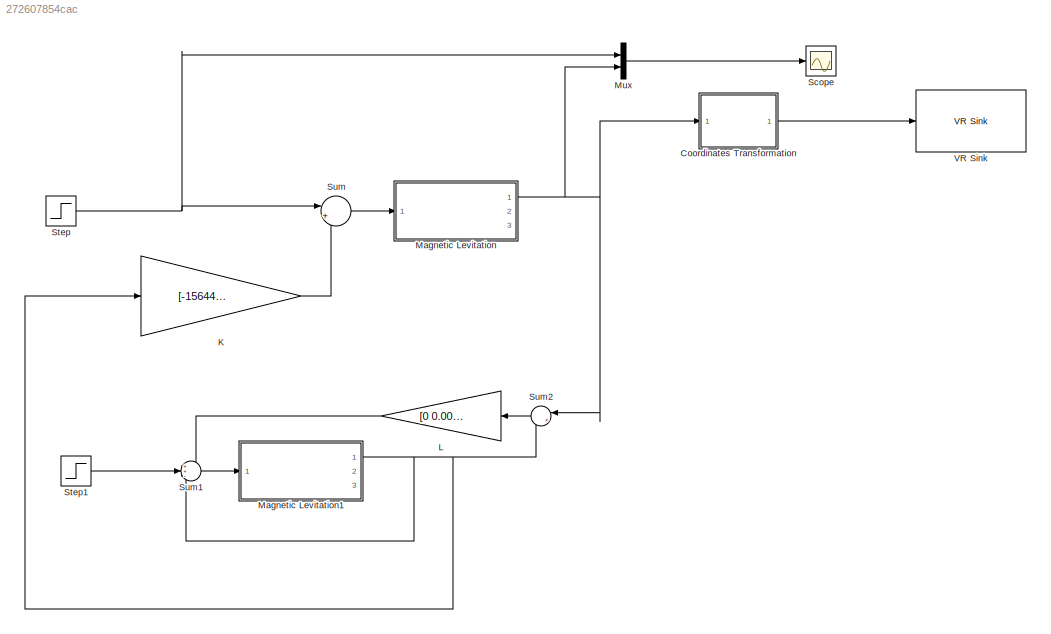
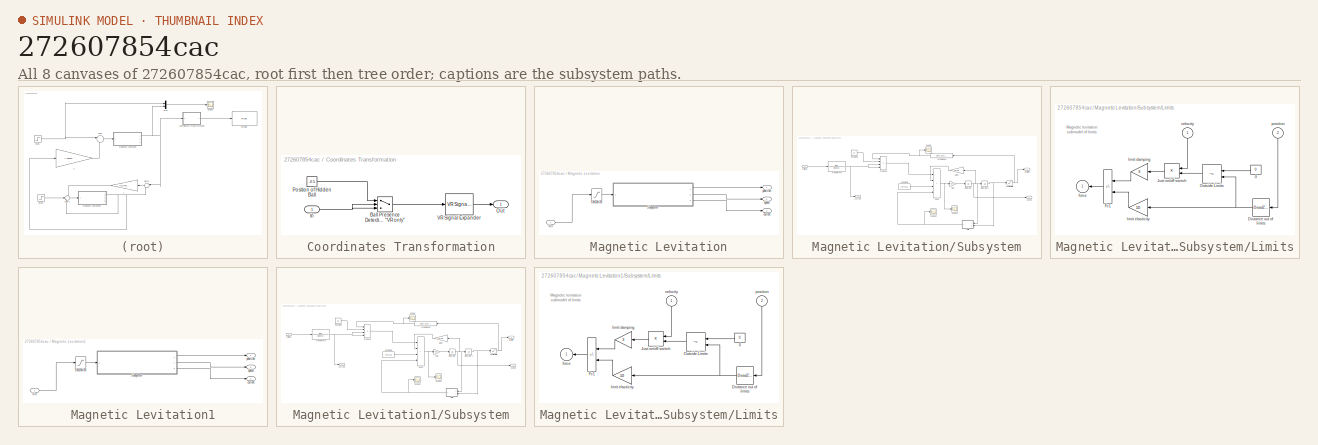
[diagram: thumbnail index - all 8 canvases of the model, root first then tree order]
MODEL slx_272607854cac
KIND model
CONFIG AbsTol = 1e-5
CONFIG EnableMultiTasking = off
CONFIG FixedStep = 1e-3
CONFIG MaxStep = 0.001
CONFIG MinStep = auto
CONFIG RelTol = 1e-3
CONFIG SampleTimeConstraint = Unconstrained
CONFIG SolverName = ode5
CONFIG StartTime = 0.0
CONFIG StopTime = 10
WORKSPACE source: MATLAB code (in-file)
WORKSPACE Ts = 1e-3  (= 0.001)
BLOCK [SubSystem] Coordinates Transformation
  Permissions = ReadOnly
  Ports = [1, 1]
  RequestExecContextInheritance = off
BLOCK [Switch] Coordinates Transformation/Ball Presence Detection Value > Threshold = Ball Not Present 1 for "VR only"
  SaturateOnIntegerOverflow = off
  Threshold = 1
BLOCK [Inport] Coordinates Transformation/In
BLOCK [Outport] Coordinates Transformation/Out
BLOCK [Constant] Coordinates Transformation/Position of Hidden Ball
  Value = -0.5
BLOCK [Reference] Coordinates Transformation/VR Signal Expander  REF=vrlib/VR Signal Expander
  Ports = [1, 1]
  SourceBlock = vrlib/VR Signal Expander
  SourceProductBaseCode = SL
  SourceType = VR Signal Expander
BLOCK [Gain] K
  Gain = [-15644 -384.2822 -161.1118]
BLOCK [Gain] L
  Gain = [0 0.0037 -51893]
  NameLocation = top
BLOCK [SubSystem] Magnetic Levitation
  Ports = [1, 3]
  RequestExecContextInheritance = off
BLOCK [Saturate] Magnetic Levitation/Saturation
  LowerLimit = 0
  UpperLimit = 10
  ZeroCross = off
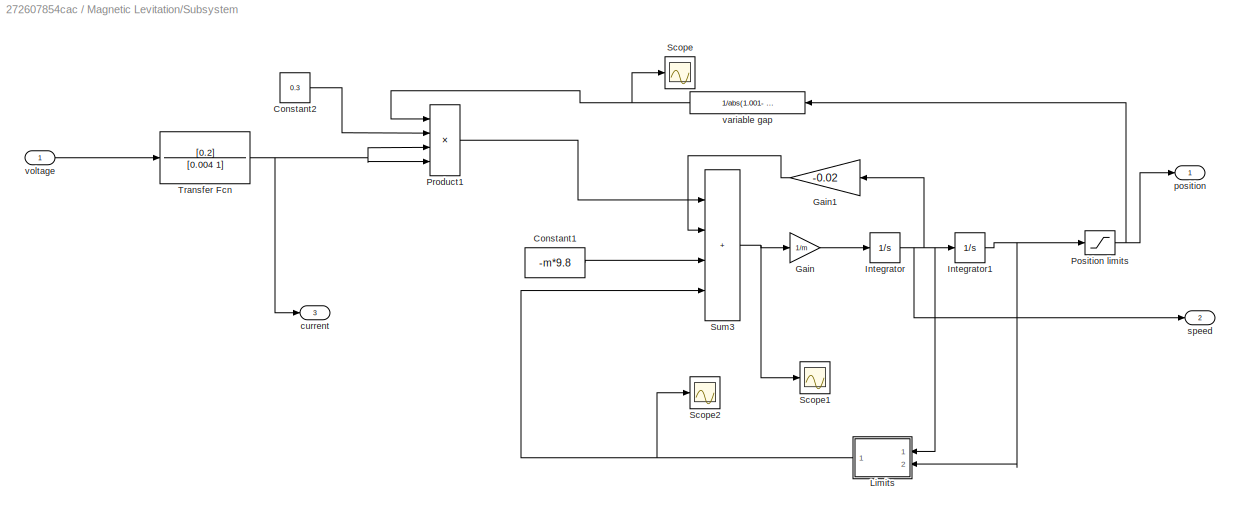
BLOCK [SubSystem] Magnetic Levitation/Subsystem
  Ports = [1, 3]
  RequestExecContextInheritance = off
BLOCK [Constant] Magnetic Levitation/Subsystem/Constant1
  Value = -m*9.8
BLOCK [Constant] Magnetic Levitation/Subsystem/Constant2
  Value = 0.3
BLOCK [Gain] Magnetic Levitation/Subsystem/Gain
  Gain = 1/m
BLOCK [Gain] Magnetic Levitation/Subsystem/Gain1
  Gain = -0.02
  NameLocation = top
BLOCK [Integrator] Magnetic Levitation/Subsystem/Integrator
  Ports = [1, 1]
BLOCK [Integrator] Magnetic Levitation/Subsystem/Integrator1
  LimitOutput = on
  LowerSaturationLimit = 0
  Ports = [1, 1]
  UpperSaturationLimit = 1
BLOCK [SubSystem] Magnetic Levitation/Subsystem/Limits
  Ports = [2, 1]
  RequestExecContextInheritance = off
  ShowPortLabels = none
BLOCK [Constant] Magnetic Levitation/Subsystem/Limits/0
  Value = 0
BLOCK [DeadZone] Magnetic Levitation/Subsystem/Limits/Distance out of limits
  LowerValue = 0.002
  UpperValue = 1
  ZeroCross = off
BLOCK [Sum] Magnetic Levitation/Subsystem/Limits/Fc1
  IconShape = rectangular
  InputSameDT = on
  Inputs = --
  OutDataTypeStr = Inherit: Same as first input
  Ports = [2, 1]
  SaturateOnIntegerOverflow = on
BLOCK [Product] Magnetic Levitation/Subsystem/Limits/Just on//off switch 
  InputSameDT = on
  OutDataTypeStr = Inherit: Same as first input
  Ports = [2, 1]
  SaturateOnIntegerOverflow = on
BLOCK [RelationalOperator] Magnetic Levitation/Subsystem/Limits/Outside Limits
  Operator = ~=
  Ports = [2, 1]
BLOCK [Outport] Magnetic Levitation/Subsystem/Limits/force
BLOCK [Gain] Magnetic Levitation/Subsystem/Limits/limit damping
  Gain = 3
  OutDataTypeStr = Inherit: Same as input
  ParamDataTypeStr = Inherit: Same as input
  SaturateOnIntegerOverflow = on
BLOCK [Gain] Magnetic Levitation/Subsystem/Limits/limit elasticity
  Gain = 10
  OutDataTypeStr = Inherit: Same as input
  ParamDataTypeStr = Inherit: Same as input
  SaturateOnIntegerOverflow = on
BLOCK [Inport] Magnetic Levitation/Subsystem/Limits/position
  NameLocation = right
  Port = 2
BLOCK [Inport] Magnetic Levitation/Subsystem/Limits/velocity
  NameLocation = right
BLOCK [Saturate] Magnetic Levitation/Subsystem/Position limits
  LowerLimit = 0.001
  UpperLimit = 0.998
  ZeroCross = off
BLOCK [Product] Magnetic Levitation/Subsystem/Product1
  Inputs = 4
  Ports = [4, 1]
BLOCK [Scope] Magnetic Levitation/Subsystem/Scope
  Floating = off
  NumInputPorts = 1
  Ports = [1]
  ScopeSpecificationString = Simulink.scopes.TimeScopeBlockCfg('CurrentConfiguration', extmgr.ConfigurationSet(extmgr.Configuration('Core','General UI',true),extmgr.Configuration('Core','Source UI',true),extmgr.Configuration('Sources','WiredSimulink',true,'DataLoggingVariableName','ScopeData1'),extmgr.Configuration('Visuals','Time Domain',true,'SerializedDisplays',{struct('MinYLimReal','-40.54054','MaxYLimReal','374.87487','Y...<+1381ch>
BLOCK [Scope] Magnetic Levitation/Subsystem/Scope1
  Floating = off
  NumInputPorts = 1
  Ports = [1]
  ScopeSpecificationString = Simulink.scopes.TimeScopeBlockCfg('CurrentConfiguration', extmgr.ConfigurationSet(extmgr.Configuration('Core','General UI',true),extmgr.Configuration('Core','Source UI',true),extmgr.Configuration('Sources','WiredSimulink',true,'DataLoggingVariableName','ScopeData2'),extmgr.Configuration('Visuals','Time Domain',true,'SerializedDisplays',{struct('MinYLimReal','-21376391083219120442781708779858395089...<+3841ch>
BLOCK [Scope] Magnetic Levitation/Subsystem/Scope2
  Floating = off
  NumInputPorts = 1
  Ports = [1]
  ScopeSpecificationString = Simulink.scopes.TimeScopeBlockCfg('CurrentConfiguration', extmgr.ConfigurationSet(extmgr.Configuration('Core','General UI',true),extmgr.Configuration('Core','Source UI',true),extmgr.Configuration('Sources','WiredSimulink',true,'DataLoggingVariableName','ScopeData3'),extmgr.Configuration('Visuals','Time Domain',true,'SerializedDisplays',{struct('MinYLimReal','-0.1107','MaxYLimReal','1.19629','YLabe...<+1363ch>
BLOCK [Sum] Magnetic Levitation/Subsystem/Sum3
  IconShape = rectangular
  Inputs = ++++
  Ports = [4, 1]
BLOCK [TransferFcn] Magnetic Levitation/Subsystem/Transfer Fcn
  Denominator = [0.004 1]
  Numerator = [0.2]
BLOCK [Outport] Magnetic Levitation/Subsystem/current
  Port = 3
BLOCK [Outport] Magnetic Levitation/Subsystem/position 
BLOCK [Outport] Magnetic Levitation/Subsystem/speed
  Port = 2
BLOCK [Fcn] Magnetic Levitation/Subsystem/variable gap
  Expr = 1/abs(1.001- u)
BLOCK [Inport] Magnetic Levitation/Subsystem/voltage
BLOCK [Inport] Magnetic Levitation/Vin
BLOCK [Outport] Magnetic Levitation/current
  Port = 3
BLOCK [Outport] Magnetic Levitation/position
BLOCK [Outport] Magnetic Levitation/speed
  Port = 2
BLOCK [SubSystem] Magnetic Levitation1
  Ports = [1, 3]
  RequestExecContextInheritance = off
BLOCK [Saturate] Magnetic Levitation1/Saturation
  LowerLimit = 0
  UpperLimit = 10
  ZeroCross = off
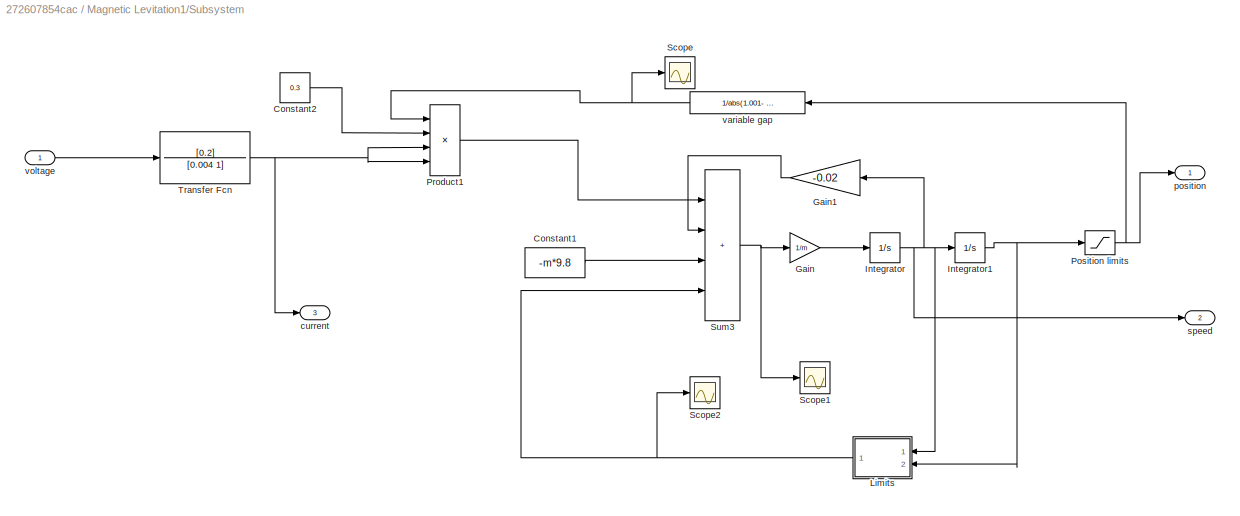
BLOCK [SubSystem] Magnetic Levitation1/Subsystem
  Ports = [1, 3]
  RequestExecContextInheritance = off
BLOCK [Constant] Magnetic Levitation1/Subsystem/Constant1
  Value = -m*9.8
BLOCK [Constant] Magnetic Levitation1/Subsystem/Constant2
  Value = 0.3
BLOCK [Gain] Magnetic Levitation1/Subsystem/Gain
  Gain = 1/m
BLOCK [Gain] Magnetic Levitation1/Subsystem/Gain1
  Gain = -0.02
  NameLocation = top
BLOCK [Integrator] Magnetic Levitation1/Subsystem/Integrator
  Ports = [1, 1]
BLOCK [Integrator] Magnetic Levitation1/Subsystem/Integrator1
  LimitOutput = on
  LowerSaturationLimit = 0
  Ports = [1, 1]
  UpperSaturationLimit = 1
BLOCK [SubSystem] Magnetic Levitation1/Subsystem/Limits
  Ports = [2, 1]
  RequestExecContextInheritance = off
  ShowPortLabels = none
BLOCK [Constant] Magnetic Levitation1/Subsystem/Limits/0
  Value = 0
BLOCK [DeadZone] Magnetic Levitation1/Subsystem/Limits/Distance out of limits
  LowerValue = 0.002
  UpperValue = 1
  ZeroCross = off
BLOCK [Sum] Magnetic Levitation1/Subsystem/Limits/Fc1
  IconShape = rectangular
  InputSameDT = on
  Inputs = --
  OutDataTypeStr = Inherit: Same as first input
  Ports = [2, 1]
  SaturateOnIntegerOverflow = on
BLOCK [Product] Magnetic Levitation1/Subsystem/Limits/Just on//off switch 
  InputSameDT = on
  OutDataTypeStr = Inherit: Same as first input
  Ports = [2, 1]
  SaturateOnIntegerOverflow = on
BLOCK [RelationalOperator] Magnetic Levitation1/Subsystem/Limits/Outside Limits
  Operator = ~=
  Ports = [2, 1]
BLOCK [Outport] Magnetic Levitation1/Subsystem/Limits/force
BLOCK [Gain] Magnetic Levitation1/Subsystem/Limits/limit damping
  Gain = 3
  OutDataTypeStr = Inherit: Same as input
  ParamDataTypeStr = Inherit: Same as input
  SaturateOnIntegerOverflow = on
BLOCK [Gain] Magnetic Levitation1/Subsystem/Limits/limit elasticity
  Gain = 10
  OutDataTypeStr = Inherit: Same as input
  ParamDataTypeStr = Inherit: Same as input
  SaturateOnIntegerOverflow = on
BLOCK [Inport] Magnetic Levitation1/Subsystem/Limits/position
  NameLocation = right
  Port = 2
BLOCK [Inport] Magnetic Levitation1/Subsystem/Limits/velocity
  NameLocation = right
BLOCK [Saturate] Magnetic Levitation1/Subsystem/Position limits
  LowerLimit = 0.001
  UpperLimit = 0.998
  ZeroCross = off
BLOCK [Product] Magnetic Levitation1/Subsystem/Product1
  Inputs = 4
  Ports = [4, 1]
BLOCK [Scope] Magnetic Levitation1/Subsystem/Scope
  Floating = off
  NumInputPorts = 1
  Ports = [1]
  ScopeSpecificationString = Simulink.scopes.TimeScopeBlockCfg('CurrentConfiguration', extmgr.ConfigurationSet(extmgr.Configuration('Core','General UI',true),extmgr.Configuration('Core','Source UI',true),extmgr.Configuration('Sources','WiredSimulink',true,'DataLoggingVariableName','ScopeData1'),extmgr.Configuration('Visuals','Time Domain',true,'SerializedDisplays',{struct('MinYLimReal','-40.54054','MaxYLimReal','374.87487','Y...<+1381ch>
BLOCK [Scope] Magnetic Levitation1/Subsystem/Scope1
  Floating = off
  NumInputPorts = 1
  Ports = [1]
  ScopeSpecificationString = Simulink.scopes.TimeScopeBlockCfg('CurrentConfiguration', extmgr.ConfigurationSet(extmgr.Configuration('Core','General UI',true),extmgr.Configuration('Core','Source UI',true),extmgr.Configuration('Sources','WiredSimulink',true,'DataLoggingVariableName','ScopeData2'),extmgr.Configuration('Visuals','Time Domain',true,'SerializedDisplays',{struct('MinYLimReal','-21376391083219120442781708779858395089...<+3841ch>
BLOCK [Scope] Magnetic Levitation1/Subsystem/Scope2
  Floating = off
  NumInputPorts = 1
  Ports = [1]
  ScopeSpecificationString = Simulink.scopes.TimeScopeBlockCfg('CurrentConfiguration', extmgr.ConfigurationSet(extmgr.Configuration('Core','General UI',true),extmgr.Configuration('Core','Source UI',true),extmgr.Configuration('Sources','WiredSimulink',true,'DataLoggingVariableName','ScopeData3'),extmgr.Configuration('Visuals','Time Domain',true,'SerializedDisplays',{struct('MinYLimReal','-0.1107','MaxYLimReal','1.19629','YLabe...<+1363ch>
BLOCK [Sum] Magnetic Levitation1/Subsystem/Sum3
  IconShape = rectangular
  Inputs = ++++
  Ports = [4, 1]
BLOCK [TransferFcn] Magnetic Levitation1/Subsystem/Transfer Fcn
  Denominator = [0.004 1]
  Numerator = [0.2]
BLOCK [Outport] Magnetic Levitation1/Subsystem/current
  Port = 3
BLOCK [Outport] Magnetic Levitation1/Subsystem/position 
BLOCK [Outport] Magnetic Levitation1/Subsystem/speed
  Port = 2
BLOCK [Fcn] Magnetic Levitation1/Subsystem/variable gap
  Expr = 1/abs(1.001- u)
BLOCK [Inport] Magnetic Levitation1/Subsystem/voltage
BLOCK [Inport] Magnetic Levitation1/Vin
BLOCK [Outport] Magnetic Levitation1/current
  Port = 3
BLOCK [Outport] Magnetic Levitation1/position
BLOCK [Outport] Magnetic Levitation1/speed
  Port = 2
BLOCK [Mux] Mux
  DisplayOption = bar
  Inputs = 2
  Ports = [2, 1]
BLOCK [Scope] Scope
  ExtModeUploadOption = log
  Floating = off
  NumInputPorts = 1
  Ports = [1]
  ScopeSpecificationString = Simulink.scopes.TimeScopeBlockCfg('CurrentConfiguration', extmgr.ConfigurationSet(extmgr.Configuration('Core','General UI',true),extmgr.Configuration('Core','Source UI',true),extmgr.Configuration('Sources','WiredSimulink',true,'DataLoggingSaveFormat','Structure','DataLoggingMaxPoints','250','SampleTime','0.02','DataLoggingLimitDataPoints',true,'DataLoggingDecimation','1'),extmgr.Configuration('Vis...<+1780ch>
BLOCK [Step] Step
  SampleTime = 0
BLOCK [Step] Step1
  SampleTime = 0
BLOCK [Sum] Sum
  InputSameDT = on
  Inputs = |+-
  OutDataTypeStr = Inherit: Same as first input
  Ports = [2, 1]
  SaturateOnIntegerOverflow = on
BLOCK [Sum] Sum1
  Inputs = ++-
  Ports = [3, 1]
BLOCK [Sum] Sum2
  Inputs = |+-
  NameLocation = top
  Ports = [2, 1]
BLOCK [Reference] VR Sink  REF=vrlib/VR Sink
  InstantiateOnLoad = on
  Ports = [1]
  SourceBlock = vrlib/VR Sink
  SourceProductBaseCode = SL
  SourceType = Virtual Reality Sink
ANNOTATION Magnetic Levitation/Subsystem/Limits: Magnetic levitation submodel of limits
ANNOTATION Magnetic Levitation1/Subsystem/Limits: Magnetic levitation submodel of limits
LINE Coordinates Transformation/Ball Presence Detection Value > Threshold = Ball Not Present 1 for "VR only":1 -> Coordinates Transformation/VR Signal Expander:1
NET Coordinates Transformation/In:1 -> Coordinates Transformation/Ball Presence Detection Value > Threshold = Ball Not Present 1 for "VR only":2, Coordinates Transformation/Ball Presence Detection Value > Threshold = Ball Not Present 1 for "VR only":3
LINE Coordinates Transformation/Position of Hidden Ball:1 -> Coordinates Transformation/Ball Presence Detection Value > Threshold = Ball Not Present 1 for "VR only":1
LINE Coordinates Transformation/VR Signal Expander:1 -> Coordinates Transformation/Out:1
LINE Coordinates Transformation:1 -> VR Sink:1
LINE K:1 -> Sum:2
LINE L:1 -> Sum1:1
LINE Magnetic Levitation/Saturation:1 -> Magnetic Levitation/Subsystem:1
LINE Magnetic Levitation/Subsystem/Constant1:1 -> Magnetic Levitation/Subsystem/Sum3:3
LINE Magnetic Levitation/Subsystem/Constant2:1 -> Magnetic Levitation/Subsystem/Product1:2
LINE Magnetic Levitation/Subsystem/Gain1:1 -> Magnetic Levitation/Subsystem/Sum3:2
LINE Magnetic Levitation/Subsystem/Gain:1 -> Magnetic Levitation/Subsystem/Integrator:1
NET Magnetic Levitation/Subsystem/Integrator1:1 -> Magnetic Levitation/Subsystem/Limits:2, Magnetic Levitation/Subsystem/Position limits:1
NET Magnetic Levitation/Subsystem/Integrator:1 -> Magnetic Levitation/Subsystem/Gain1:1, Magnetic Levitation/Subsystem/Integrator1:1, Magnetic Levitation/Subsystem/Limits:1, Magnetic Levitation/Subsystem/speed:1
LINE Magnetic Levitation/Subsystem/Limits/0:1 -> Magnetic Levitation/Subsystem/Limits/Outside Limits:1
NET Magnetic Levitation/Subsystem/Limits/Distance out of limits:1 -> Magnetic Levitation/Subsystem/Limits/Outside Limits:2, Magnetic Levitation/Subsystem/Limits/limit elasticity:1
LINE Magnetic Levitation/Subsystem/Limits/Fc1:1 -> Magnetic Levitation/Subsystem/Limits/force:1
LINE Magnetic Levitation/Subsystem/Limits/Just on//off switch :1 -> Magnetic Levitation/Subsystem/Limits/limit damping:1
LINE Magnetic Levitation/Subsystem/Limits/Outside Limits:1 -> Magnetic Levitation/Subsystem/Limits/Just on//off switch :2
LINE Magnetic Levitation/Subsystem/Limits/limit damping:1 -> Magnetic Levitation/Subsystem/Limits/Fc1:1
LINE Magnetic Levitation/Subsystem/Limits/limit elasticity:1 -> Magnetic Levitation/Subsystem/Limits/Fc1:2
LINE Magnetic Levitation/Subsystem/Limits/position:1 -> Magnetic Levitation/Subsystem/Limits/Distance out of limits:1
LINE Magnetic Levitation/Subsystem/Limits/velocity:1 -> Magnetic Levitation/Subsystem/Limits/Just on//off switch :1
NET Magnetic Levitation/Subsystem/Limits:1 -> Magnetic Levitation/Subsystem/Scope2:1, Magnetic Levitation/Subsystem/Sum3:4
NET Magnetic Levitation/Subsystem/Position limits:1 -> Magnetic Levitation/Subsystem/position :1, Magnetic Levitation/Subsystem/variable gap:1
LINE Magnetic Levitation/Subsystem/Product1:1 -> Magnetic Levitation/Subsystem/Sum3:1
NET Magnetic Levitation/Subsystem/Sum3:1 -> Magnetic Levitation/Subsystem/Gain:1, Magnetic Levitation/Subsystem/Scope1:1
NET Magnetic Levitation/Subsystem/Transfer Fcn:1 -> Magnetic Levitation/Subsystem/Product1:3, Magnetic Levitation/Subsystem/Product1:4, Magnetic Levitation/Subsystem/current:1
NET Magnetic Levitation/Subsystem/variable gap:1 -> Magnetic Levitation/Subsystem/Product1:1, Magnetic Levitation/Subsystem/Scope:1
LINE Magnetic Levitation/Subsystem/voltage:1 -> Magnetic Levitation/Subsystem/Transfer Fcn:1
LINE Magnetic Levitation/Subsystem:1 -> Magnetic Levitation/position:1
LINE Magnetic Levitation/Subsystem:2 -> Magnetic Levitation/speed:1
LINE Magnetic Levitation/Subsystem:3 -> Magnetic Levitation/current:1
LINE Magnetic Levitation/Vin:1 -> Magnetic Levitation/Saturation:1
LINE Magnetic Levitation1/Saturation:1 -> Magnetic Levitation1/Subsystem:1
LINE Magnetic Levitation1/Subsystem/Constant1:1 -> Magnetic Levitation1/Subsystem/Sum3:3
LINE Magnetic Levitation1/Subsystem/Constant2:1 -> Magnetic Levitation1/Subsystem/Product1:2
LINE Magnetic Levitation1/Subsystem/Gain1:1 -> Magnetic Levitation1/Subsystem/Sum3:2
LINE Magnetic Levitation1/Subsystem/Gain:1 -> Magnetic Levitation1/Subsystem/Integrator:1
NET Magnetic Levitation1/Subsystem/Integrator1:1 -> Magnetic Levitation1/Subsystem/Limits:2, Magnetic Levitation1/Subsystem/Position limits:1
NET Magnetic Levitation1/Subsystem/Integrator:1 -> Magnetic Levitation1/Subsystem/Gain1:1, Magnetic Levitation1/Subsystem/Integrator1:1, Magnetic Levitation1/Subsystem/Limits:1, Magnetic Levitation1/Subsystem/speed:1
LINE Magnetic Levitation1/Subsystem/Limits/0:1 -> Magnetic Levitation1/Subsystem/Limits/Outside Limits:1
NET Magnetic Levitation1/Subsystem/Limits/Distance out of limits:1 -> Magnetic Levitation1/Subsystem/Limits/Outside Limits:2, Magnetic Levitation1/Subsystem/Limits/limit elasticity:1
LINE Magnetic Levitation1/Subsystem/Limits/Fc1:1 -> Magnetic Levitation1/Subsystem/Limits/force:1
LINE Magnetic Levitation1/Subsystem/Limits/Just on//off switch :1 -> Magnetic Levitation1/Subsystem/Limits/limit damping:1
LINE Magnetic Levitation1/Subsystem/Limits/Outside Limits:1 -> Magnetic Levitation1/Subsystem/Limits/Just on//off switch :2
LINE Magnetic Levitation1/Subsystem/Limits/limit damping:1 -> Magnetic Levitation1/Subsystem/Limits/Fc1:1
LINE Magnetic Levitation1/Subsystem/Limits/limit elasticity:1 -> Magnetic Levitation1/Subsystem/Limits/Fc1:2
LINE Magnetic Levitation1/Subsystem/Limits/position:1 -> Magnetic Levitation1/Subsystem/Limits/Distance out of limits:1
LINE Magnetic Levitation1/Subsystem/Limits/velocity:1 -> Magnetic Levitation1/Subsystem/Limits/Just on//off switch :1
NET Magnetic Levitation1/Subsystem/Limits:1 -> Magnetic Levitation1/Subsystem/Scope2:1, Magnetic Levitation1/Subsystem/Sum3:4
NET Magnetic Levitation1/Subsystem/Position limits:1 -> Magnetic Levitation1/Subsystem/position :1, Magnetic Levitation1/Subsystem/variable gap:1
LINE Magnetic Levitation1/Subsystem/Product1:1 -> Magnetic Levitation1/Subsystem/Sum3:1
NET Magnetic Levitation1/Subsystem/Sum3:1 -> Magnetic Levitation1/Subsystem/Gain:1, Magnetic Levitation1/Subsystem/Scope1:1
NET Magnetic Levitation1/Subsystem/Transfer Fcn:1 -> Magnetic Levitation1/Subsystem/Product1:3, Magnetic Levitation1/Subsystem/Product1:4, Magnetic Levitation1/Subsystem/current:1
NET Magnetic Levitation1/Subsystem/variable gap:1 -> Magnetic Levitation1/Subsystem/Product1:1, Magnetic Levitation1/Subsystem/Scope:1
LINE Magnetic Levitation1/Subsystem/voltage:1 -> Magnetic Levitation1/Subsystem/Transfer Fcn:1
LINE Magnetic Levitation1/Subsystem:1 -> Magnetic Levitation1/position:1
LINE Magnetic Levitation1/Subsystem:2 -> Magnetic Levitation1/speed:1
LINE Magnetic Levitation1/Subsystem:3 -> Magnetic Levitation1/current:1
LINE Magnetic Levitation1/Vin:1 -> Magnetic Levitation1/Saturation:1
NET Magnetic Levitation1:1 -> K:1, Sum1:3, Sum2:2
NET Magnetic Levitation:1 -> Coordinates Transformation:1, Mux:2, Sum2:1
LINE Mux:1 -> Scope:1
LINE Step1:1 -> Sum1:2
NET Step:1 -> Mux:1, Sum:1
LINE Sum1:1 -> Magnetic Levitation1:1
LINE Sum2:1 -> L:1
LINE Sum:1 -> Magnetic Levitation:1
note: NET lines group one-source signal fan-out (src -> all destinations, sorted); 1:1 wires keep LINE
